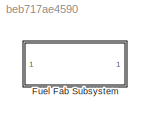
MODEL slx_beb717ae4590
KIND library
CONFIG AbsTol = auto
CONFIG EnableMultiTasking = off
CONFIG FixedStep = auto
CONFIG MaxStep = auto
CONFIG MinStep = auto
CONFIG RelTol = 1e-3
CONFIG SampleTimeConstraint = Unconstrained
CONFIG SolverName = VariableStepAuto
CONFIG StartTime = 0.0
CONFIG StopTime = 10.0
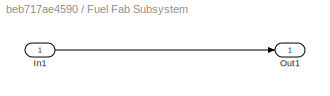
BLOCK [SubSystem] Fuel Fab Subsystem
BLOCK [Inport] Fuel Fab Subsystem/In1
BLOCK [Outport] Fuel Fab Subsystem/Out1
LINE Fuel Fab Subsystem/In1:1 -> Fuel Fab Subsystem/Out1:1
